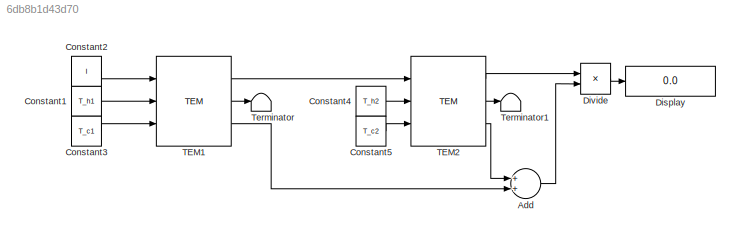
MODEL slx_6db8b1d43d70
KIND model
CONFIG AbsTol = auto
CONFIG FixedStep = 1
CONFIG MaxStep = auto
CONFIG MinStep = auto
CONFIG RelTol = 1e-3
CONFIG SampleTimeConstraint = Unconstrained
CONFIG Solver = ode3
CONFIG SolverMode = Auto
CONFIG SolverName = ode3
CONFIG StartTime = 0.0
CONFIG StopTime = 5
BLOCK [Sum] Add
  InputSameDT = off
  OutDataTypeStr = Inherit: Inherit via internal rule
  Ports = [2, 1]
  SaturateOnIntegerOverflow = off
BLOCK [Constant] Constant1
  Value = T_h1
BLOCK [Constant] Constant2
  Value = I
BLOCK [Constant] Constant3
  Value = T_c1
BLOCK [Constant] Constant4
  Value = T_h2
BLOCK [Constant] Constant5
  Value = T_c2
BLOCK [Display] Display
  Decimation = 1
  Ports = [1]
BLOCK [Product] Divide
  InputSameDT = off
  Inputs = **
  OutDataTypeStr = Inherit: Inherit via internal rule
  Ports = [2, 1]
  RndMeth = Floor
  SaturateOnIntegerOverflow = off
BLOCK [Reference] TEM1  REF=LU_TEG/TEM
  Ports = [3, 3]
  SourceBlock = LU_TEG/TEM
  Tune_er = Tune_er
  Tune_tr = Tune_tr
  a = a
  ct1 = ct1
  ct2 = ct2
  f = f
  l = l
  l_cw = l_cw
  n = n
BLOCK [Reference] TEM2  REF=LU_TEG/TEM
  Ports = [3, 3]
  SourceBlock = LU_TEG/TEM
  Tune_er = Tune_er
  Tune_tr = Tune_tr
  a = a
  ct1 = ct1
  ct2 = ct2
  f = f
  l = l
  l_cw = l_cw
  n = n
BLOCK [Terminator] Terminator
BLOCK [Terminator] Terminator1
LINE Add:1 -> Divide:2
LINE Constant1:1 -> TEM1:2
LINE Constant2:1 -> TEM1:1
LINE Constant3:1 -> TEM1:3
LINE Constant4:1 -> TEM2:2
LINE Constant5:1 -> TEM2:3
LINE Divide:1 -> Display:1
LINE TEM1:1 -> TEM2:1
LINE TEM1:2 -> Terminator:1
LINE TEM1:3 -> Add:2
LINE TEM2:1 -> Divide:1
LINE TEM2:2 -> Terminator1:1
LINE TEM2:3 -> Add:1
